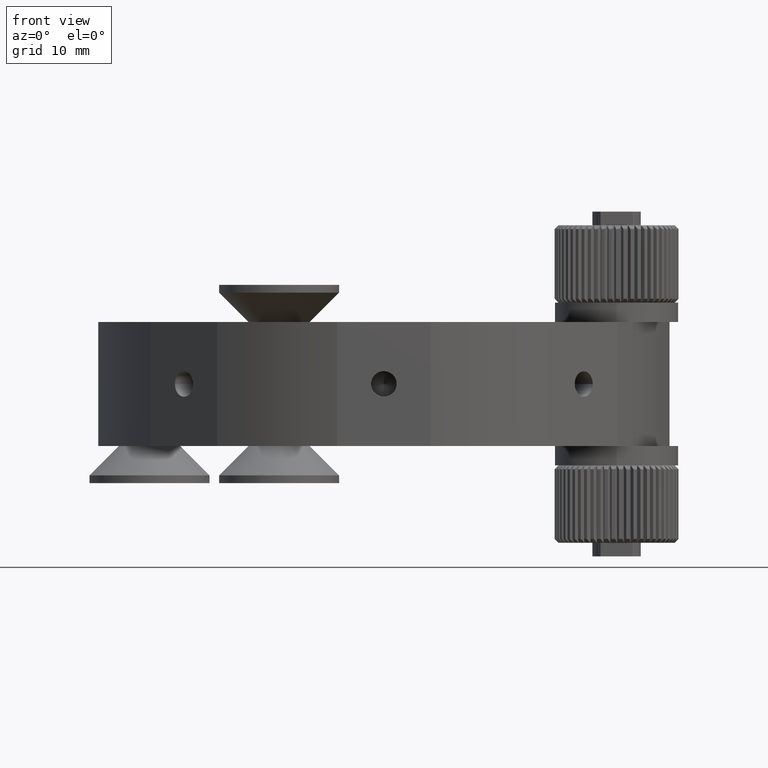
[diagram: clean part render]
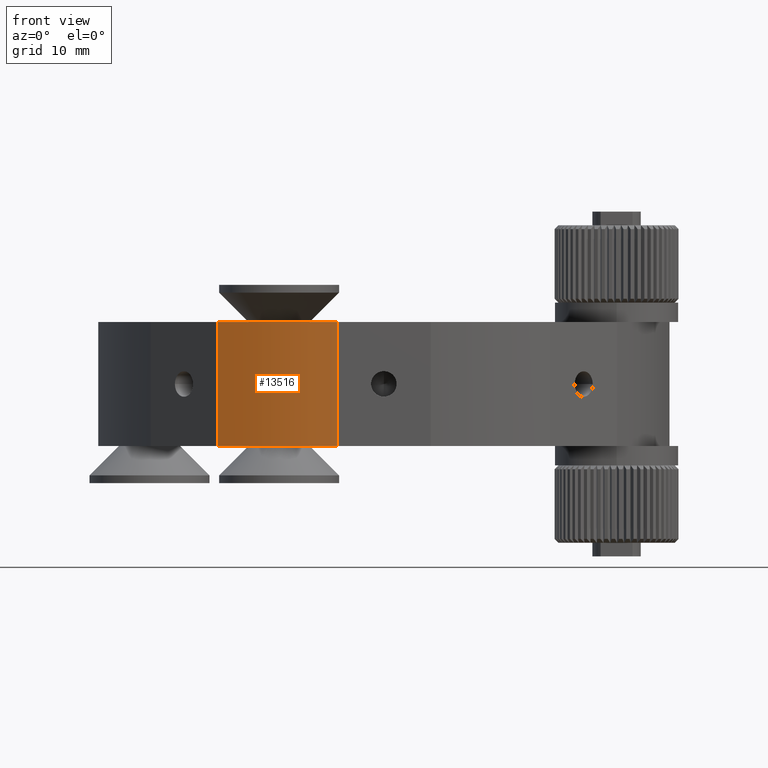
[diagram: same view with one face highlighted and labeled with its STEP entity id]
A machine part, front view. The second image highlights one B-rep face of the part: STEP entity #13516.
In plain terms, the highlighted cylindrical surface (partial cylindrical patch) has radius 37 mm, axis along (-0, -0, -1).
Its self-contained STEP definition (entity closure, byte-faithful):
#735 = VECTOR ( 'NONE', #9525, 1000.000000000000000 ) ;
#1389 = CARTESIAN_POINT ( 'NONE',  ( -18.84317717884897900, -28.19794515326110600, 8.000000000000000000 ) ) ;
#2339 = ORIENTED_EDGE ( 'NONE', *, *, #14475, .F. ) ;
#2702 = CARTESIAN_POINT ( 'NONE',  ( 2.679613284590009600, 1.898059409918034800, -8.000000000000000000 ) ) ;
#2791 = DIRECTION ( 'NONE',  ( -0.0000000000000000000, -0.0000000000000000000, -1.000000000000000000 ) ) ;
#3934 = CARTESIAN_POINT ( 'NONE',  ( -18.84317717884897900, -28.19794515326110600, -8.000000000000000000 ) ) ;
#4185 = AXIS2_PLACEMENT_3D ( 'NONE', #15490, #12688, #9765 ) ;
#4401 = EDGE_LOOP ( 'NONE', ( #14308, #2339, #12313, #8988 ) ) ;
#4651 = EDGE_CURVE ( 'NONE', #12145, #16526, #16127, .T. ) ;
#4850 = LINE ( 'NONE', #17849, #735 ) ;
#5963 = CYLINDRICAL_SURFACE ( 'NONE', #11614, 37.00000000000000000 ) ;
#7001 = EDGE_CURVE ( 'NONE', #16526, #10402, #16262, .T. ) ;
#7101 = CARTESIAN_POINT ( 'NONE',  ( 2.679613284590009600, 1.898059409918034800, 8.000000000000000000 ) ) ;
#7239 = DIRECTION ( 'NONE',  ( 1.000000000000000000, 0.0000000000000000000, 0.0000000000000000000 ) ) ;
#8957 = VERTEX_POINT ( 'NONE', #12878 ) ;
#8988 = ORIENTED_EDGE ( 'NONE', *, *, #4651, .T. ) ;
#9277 = CARTESIAN_POINT ( 'NONE',  ( -18.84317717884897900, -28.19794515326110600, 8.000000000000000000 ) ) ;
#9525 = DIRECTION ( 'NONE',  ( -0.0000000000000000000, -0.0000000000000000000, -1.000000000000000000 ) ) ;
#9765 = DIRECTION ( 'NONE',  ( 1.000000000000000000, 0.0000000000000000000, 0.0000000000000000000 ) ) ;
#10058 = CIRCLE ( 'NONE', #4185, 37.00000000000000000 ) ;
#10146 = CARTESIAN_POINT ( 'NONE',  ( -3.382564541901944600, -34.60194059008181700, -8.000000000000000000 ) ) ;
#10402 = VERTEX_POINT ( 'NONE', #10146 ) ;
#11593 = FACE_OUTER_BOUND ( 'NONE', #4401, .T. ) ;
#11614 = AXIS2_PLACEMENT_3D ( 'NONE', #7101, #16703, #12567 ) ;
#12145 = VERTEX_POINT ( 'NONE', #9277 ) ;
#12313 = ORIENTED_EDGE ( 'NONE', *, *, #13574, .F. ) ;
#12416 = DIRECTION ( 'NONE',  ( 0.0000000000000000000, 0.0000000000000000000, 1.000000000000000000 ) ) ;
#12437 = VECTOR ( 'NONE', #2791, 1000.000000000000000 ) ;
#12567 = DIRECTION ( 'NONE',  ( -1.000000000000000000, 0.0000000000000000000, 0.0000000000000000000 ) ) ;
#12688 = DIRECTION ( 'NONE',  ( 0.0000000000000000000, 0.0000000000000000000, 1.000000000000000000 ) ) ;
#12878 = CARTESIAN_POINT ( 'NONE',  ( -3.382564541901944600, -34.60194059008181700, 8.000000000000000000 ) ) ;
#13516 = ADVANCED_FACE ( 'NONE', ( #11593 ), #5963, .T. ) ;
#13574 = EDGE_CURVE ( 'NONE', #12145, #8957, #10058, .T. ) ;
#14308 = ORIENTED_EDGE ( 'NONE', *, *, #7001, .T. ) ;
#14475 = EDGE_CURVE ( 'NONE', #8957, #10402, #4850, .T. ) ;
#15271 = AXIS2_PLACEMENT_3D ( 'NONE', #2702, #12416, #7239 ) ;
#15490 = CARTESIAN_POINT ( 'NONE',  ( 2.679613284590009600, 1.898059409918034800, 8.000000000000000000 ) ) ;
#16127 = LINE ( 'NONE', #1389, #12437 ) ;
#16262 = CIRCLE ( 'NONE', #15271, 37.00000000000000000 ) ;
#16526 = VERTEX_POINT ( 'NONE', #3934 ) ;
#16703 = DIRECTION ( 'NONE',  ( -0.0000000000000000000, -0.0000000000000000000, -1.000000000000000000 ) ) ;
#17849 = CARTESIAN_POINT ( 'NONE',  ( -3.382564541901944600, -34.60194059008181700, 8.000000000000000000 ) ) ;